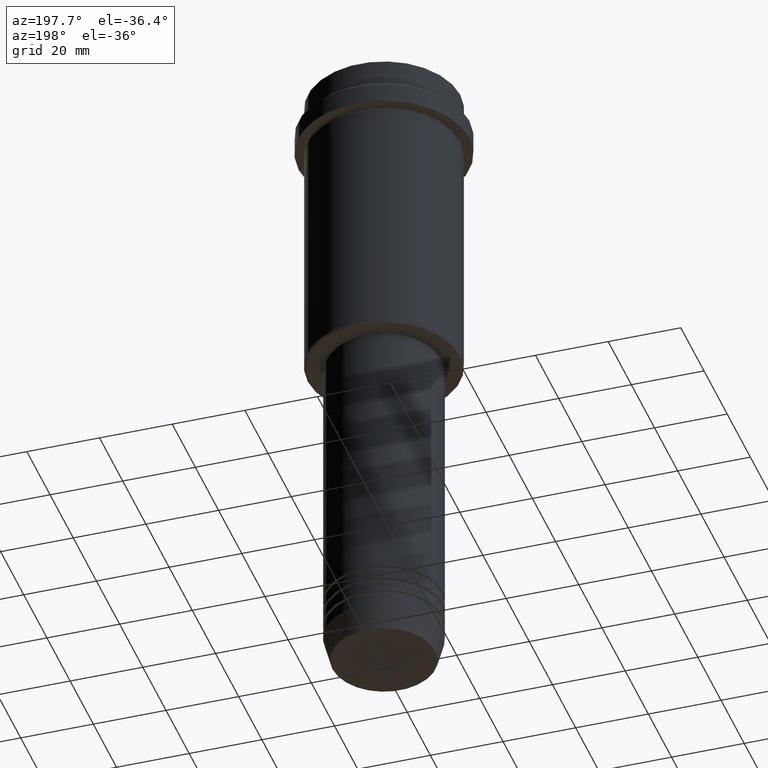
[diagram: clean part render]
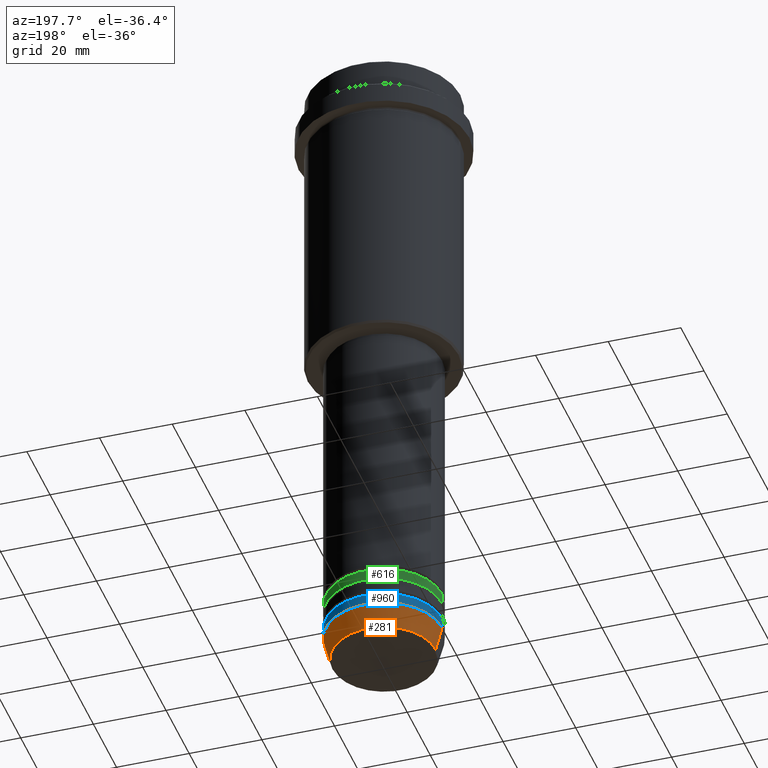
[diagram: same view with three faces highlighted in distinct colors, each labeled with its STEP entity id]
A machine part, auxiliary view with three faces highlighted in distinct colors.
Their STEP definitions:

[orange] entity #281 — the highlighted conical surface has half-angle 15 deg.
#55 = CARTESIAN_POINT ( 'NONE',  ( 0.000000000000000000, 0.000000000000000000, -173.0000000000000000 ) ) ;
#98 = VERTEX_POINT ( 'NONE', #383 ) ;
#147 = DIRECTION ( 'NONE',  ( -0.2588190451025213501, 3.169619151431772337E-17, 0.9659258262890680902 ) ) ;
#152 = CARTESIAN_POINT ( 'NONE',  ( -14.22365507213718772, 1.850665122131323337E-15, -179.6294095225512422 ) ) ;
#215 = VERTEX_POINT ( 'NONE', #262 ) ;
#220 = EDGE_CURVE ( 'NONE', #98, #215, #839, .T. ) ;
#226 = DIRECTION ( 'NONE',  ( -0.000000000000000000, -0.000000000000000000, 1.000000000000000000 ) ) ;
#262 = CARTESIAN_POINT ( 'NONE',  ( 16.00000000000000000, 0.000000000000000000, -173.0000000000000000 ) ) ;
#281 = ADVANCED_FACE ( 'NONE', ( #483 ), #1062, .T. ) ;
#335 = VECTOR ( 'NONE', #147, 1000.000000000000000 ) ;
#346 = LINE ( 'NONE', #1097, #335 ) ;
#370 = DIRECTION ( 'NONE',  ( -0.000000000000000000, -0.000000000000000000, 1.000000000000000000 ) ) ;
#383 = CARTESIAN_POINT ( 'NONE',  ( 14.22365507213718772, 0.000000000000000000, -179.6294095225512422 ) ) ;
#402 = EDGE_CURVE ( 'NONE', #215, #500, #1021, .T. ) ;
#479 = ORIENTED_EDGE ( 'NONE', *, *, #599, .T. ) ;
#483 = FACE_OUTER_BOUND ( 'NONE', #885, .T. ) ;
#500 = VERTEX_POINT ( 'NONE', #1052 ) ;
#505 = ORIENTED_EDGE ( 'NONE', *, *, #220, .F. ) ;
#599 = EDGE_CURVE ( 'NONE', #98, #882, #1064, .T. ) ;
#655 = AXIS2_PLACEMENT_3D ( 'NONE', #55, #796, #696 ) ;
#696 = DIRECTION ( 'NONE',  ( 1.000000000000000000, 0.000000000000000000, 0.000000000000000000 ) ) ;
#793 = AXIS2_PLACEMENT_3D ( 'NONE', #1363, #370, #815 ) ;
#796 = DIRECTION ( 'NONE',  ( -0.000000000000000000, -0.000000000000000000, 1.000000000000000000 ) ) ;
#802 = ORIENTED_EDGE ( 'NONE', *, *, #402, .F. ) ;
#815 = DIRECTION ( 'NONE',  ( 1.000000000000000000, 0.000000000000000000, 0.000000000000000000 ) ) ;
#839 = LINE ( 'NONE', #1193, #1203 ) ;
#882 = VERTEX_POINT ( 'NONE', #152 ) ;
#885 = EDGE_LOOP ( 'NONE', ( #479, #1039, #802, #505 ) ) ;
#1021 = CIRCLE ( 'NONE', #793, 16.00000000000000000 ) ;
#1039 = ORIENTED_EDGE ( 'NONE', *, *, #1181, .T. ) ;
#1052 = CARTESIAN_POINT ( 'NONE',  ( -16.00000000000000000, 1.959434878635765131E-15, -173.0000000000000000 ) ) ;
#1062 = CONICAL_SURFACE ( 'NONE', #655, 16.00000000000000000, 0.2617993877991500740 ) ;
#1064 = CIRCLE ( 'NONE', #1182, 14.22365507213718772 ) ;
#1097 = CARTESIAN_POINT ( 'NONE',  ( -16.00000000000000000, 1.959434878635765131E-15, -173.0000000000000000 ) ) ;
#1181 = EDGE_CURVE ( 'NONE', #882, #500, #346, .T. ) ;
#1182 = AXIS2_PLACEMENT_3D ( 'NONE', #1191, #226, #1301 ) ;
#1191 = CARTESIAN_POINT ( 'NONE',  ( 0.000000000000000000, 0.000000000000000000, -179.6294095225512422 ) ) ;
#1193 = CARTESIAN_POINT ( 'NONE',  ( 16.00000000000000000, 0.000000000000000000, -173.0000000000000000 ) ) ;
#1203 = VECTOR ( 'NONE', #1204, 1000.000000000000000 ) ;
#1204 = DIRECTION ( 'NONE',  ( 0.2588190451025213501, 0.000000000000000000, 0.9659258262890680902 ) ) ;
#1301 = DIRECTION ( 'NONE',  ( 1.000000000000000000, 0.000000000000000000, 0.000000000000000000 ) ) ;
#1363 = CARTESIAN_POINT ( 'NONE',  ( 0.000000000000000000, 0.000000000000000000, -173.0000000000000000 ) ) ;

[blue] entity #960 — the highlighted cylindrical surface (partial cylindrical patch) has radius 16 mm, axis along (-0, -0, 1).
#33 = CARTESIAN_POINT ( 'NONE',  ( -16.00000000000000000, 1.959434878635765131E-15, -169.9999999999999716 ) ) ;
#96 = DIRECTION ( 'NONE',  ( -0.000000000000000000, -0.000000000000000000, 1.000000000000000000 ) ) ;
#102 = ORIENTED_EDGE ( 'NONE', *, *, #112, .F. ) ;
#112 = EDGE_CURVE ( 'NONE', #1352, #1222, #829, .T. ) ;
#128 = EDGE_CURVE ( 'NONE', #215, #1352, #532, .T. ) ;
#215 = VERTEX_POINT ( 'NONE', #262 ) ;
#229 = VECTOR ( 'NONE', #1384, 1000.000000000000000 ) ;
#237 = LINE ( 'NONE', #898, #1016 ) ;
#262 = CARTESIAN_POINT ( 'NONE',  ( 16.00000000000000000, 0.000000000000000000, -173.0000000000000000 ) ) ;
#344 = ORIENTED_EDGE ( 'NONE', *, *, #402, .T. ) ;
#370 = DIRECTION ( 'NONE',  ( -0.000000000000000000, -0.000000000000000000, 1.000000000000000000 ) ) ;
#372 = CYLINDRICAL_SURFACE ( 'NONE', #440, 16.00000000000000000 ) ;
#396 = ORIENTED_EDGE ( 'NONE', *, *, #1252, .T. ) ;
#402 = EDGE_CURVE ( 'NONE', #215, #500, #1021, .T. ) ;
#410 = EDGE_LOOP ( 'NONE', ( #344, #396, #102, #1105 ) ) ;
#440 = AXIS2_PLACEMENT_3D ( 'NONE', #602, #1391, #1033 ) ;
#478 = CARTESIAN_POINT ( 'NONE',  ( 16.00000000000000000, 0.000000000000000000, 0.000000000000000000 ) ) ;
#500 = VERTEX_POINT ( 'NONE', #1052 ) ;
#509 = CARTESIAN_POINT ( 'NONE',  ( 16.00000000000000000, 0.000000000000000000, -169.9999999999999716 ) ) ;
#532 = LINE ( 'NONE', #478, #229 ) ;
#602 = CARTESIAN_POINT ( 'NONE',  ( 0.000000000000000000, 0.000000000000000000, 0.000000000000000000 ) ) ;
#665 = DIRECTION ( 'NONE',  ( -0.000000000000000000, -0.000000000000000000, 1.000000000000000000 ) ) ;
#793 = AXIS2_PLACEMENT_3D ( 'NONE', #1363, #370, #815 ) ;
#815 = DIRECTION ( 'NONE',  ( 1.000000000000000000, 0.000000000000000000, 0.000000000000000000 ) ) ;
#819 = DIRECTION ( 'NONE',  ( 1.000000000000000000, 0.000000000000000000, 0.000000000000000000 ) ) ;
#829 = CIRCLE ( 'NONE', #1082, 16.00000000000000000 ) ;
#898 = CARTESIAN_POINT ( 'NONE',  ( -16.00000000000000000, 1.959434878635765131E-15, 0.000000000000000000 ) ) ;
#960 = ADVANCED_FACE ( 'NONE', ( #1268 ), #372, .T. ) ;
#1016 = VECTOR ( 'NONE', #665, 1000.000000000000000 ) ;
#1021 = CIRCLE ( 'NONE', #793, 16.00000000000000000 ) ;
#1033 = DIRECTION ( 'NONE',  ( 1.000000000000000000, 0.000000000000000000, 0.000000000000000000 ) ) ;
#1052 = CARTESIAN_POINT ( 'NONE',  ( -16.00000000000000000, 1.959434878635765131E-15, -173.0000000000000000 ) ) ;
#1056 = CARTESIAN_POINT ( 'NONE',  ( 0.000000000000000000, 0.000000000000000000, -169.9999999999999716 ) ) ;
#1082 = AXIS2_PLACEMENT_3D ( 'NONE', #1056, #96, #819 ) ;
#1105 = ORIENTED_EDGE ( 'NONE', *, *, #128, .F. ) ;
#1222 = VERTEX_POINT ( 'NONE', #33 ) ;
#1252 = EDGE_CURVE ( 'NONE', #500, #1222, #237, .T. ) ;
#1268 = FACE_OUTER_BOUND ( 'NONE', #410, .T. ) ;
#1352 = VERTEX_POINT ( 'NONE', #509 ) ;
#1363 = CARTESIAN_POINT ( 'NONE',  ( 0.000000000000000000, 0.000000000000000000, -173.0000000000000000 ) ) ;
#1384 = DIRECTION ( 'NONE',  ( -0.000000000000000000, -0.000000000000000000, 1.000000000000000000 ) ) ;
#1391 = DIRECTION ( 'NONE',  ( -0.000000000000000000, -0.000000000000000000, 1.000000000000000000 ) ) ;

[green] entity #616 — the highlighted cylindrical surface (partial cylindrical patch) has radius 16 mm, axis along (-0, -0, 1).
#43 = VECTOR ( 'NONE', #464, 1000.000000000000000 ) ;
#60 = CARTESIAN_POINT ( 'NONE',  ( 0.000000000000000000, 0.000000000000000000, -161.9999999999998579 ) ) ;
#71 = DIRECTION ( 'NONE',  ( -0.000000000000000000, -0.000000000000000000, 1.000000000000000000 ) ) ;
#83 = DIRECTION ( 'NONE',  ( 1.000000000000000000, 0.000000000000000000, 0.000000000000000000 ) ) ;
#101 = CARTESIAN_POINT ( 'NONE',  ( 0.000000000000000000, 0.000000000000000000, 0.000000000000000000 ) ) ;
#104 = EDGE_CURVE ( 'NONE', #977, #1118, #399, .T. ) ;
#265 = ORIENTED_EDGE ( 'NONE', *, *, #104, .T. ) ;
#271 = CARTESIAN_POINT ( 'NONE',  ( -16.00000000000000000, 1.959434878635765131E-15, -161.9999999999998579 ) ) ;
#276 = CARTESIAN_POINT ( 'NONE',  ( -16.00000000000000000, 1.959434878635765131E-15, 0.000000000000000000 ) ) ;
#288 = AXIS2_PLACEMENT_3D ( 'NONE', #1051, #737, #942 ) ;
#300 = EDGE_CURVE ( 'NONE', #977, #1356, #1251, .T. ) ;
#307 = EDGE_LOOP ( 'NONE', ( #265, #1188, #577, #1073 ) ) ;
#337 = CIRCLE ( 'NONE', #359, 16.00000000000000000 ) ;
#354 = CARTESIAN_POINT ( 'NONE',  ( 16.00000000000000000, 0.000000000000000000, 0.000000000000000000 ) ) ;
#358 = VECTOR ( 'NONE', #1136, 1000.000000000000000 ) ;
#359 = AXIS2_PLACEMENT_3D ( 'NONE', #60, #71, #83 ) ;
#399 = CIRCLE ( 'NONE', #288, 16.00000000000000000 ) ;
#415 = CYLINDRICAL_SURFACE ( 'NONE', #549, 16.00000000000000000 ) ;
#431 = FACE_OUTER_BOUND ( 'NONE', #307, .T. ) ;
#464 = DIRECTION ( 'NONE',  ( -0.000000000000000000, -0.000000000000000000, 1.000000000000000000 ) ) ;
#487 = CARTESIAN_POINT ( 'NONE',  ( 16.00000000000000000, 0.000000000000000000, -164.9999999999998579 ) ) ;
#538 = EDGE_CURVE ( 'NONE', #1356, #1322, #337, .T. ) ;
#548 = DIRECTION ( 'NONE',  ( 1.000000000000000000, 0.000000000000000000, 0.000000000000000000 ) ) ;
#549 = AXIS2_PLACEMENT_3D ( 'NONE', #101, #738, #548 ) ;
#577 = ORIENTED_EDGE ( 'NONE', *, *, #538, .F. ) ;
#605 = LINE ( 'NONE', #276, #358 ) ;
#616 = ADVANCED_FACE ( 'NONE', ( #431 ), #415, .T. ) ;
#737 = DIRECTION ( 'NONE',  ( -0.000000000000000000, -0.000000000000000000, 1.000000000000000000 ) ) ;
#738 = DIRECTION ( 'NONE',  ( -0.000000000000000000, -0.000000000000000000, 1.000000000000000000 ) ) ;
#818 = CARTESIAN_POINT ( 'NONE',  ( 16.00000000000000000, 0.000000000000000000, -161.9999999999998579 ) ) ;
#942 = DIRECTION ( 'NONE',  ( 1.000000000000000000, 0.000000000000000000, 0.000000000000000000 ) ) ;
#977 = VERTEX_POINT ( 'NONE', #487 ) ;
#1051 = CARTESIAN_POINT ( 'NONE',  ( 0.000000000000000000, 0.000000000000000000, -164.9999999999998579 ) ) ;
#1067 = CARTESIAN_POINT ( 'NONE',  ( -16.00000000000000000, 1.959434878635765131E-15, -164.9999999999998579 ) ) ;
#1073 = ORIENTED_EDGE ( 'NONE', *, *, #300, .F. ) ;
#1118 = VERTEX_POINT ( 'NONE', #1067 ) ;
#1136 = DIRECTION ( 'NONE',  ( -0.000000000000000000, -0.000000000000000000, 1.000000000000000000 ) ) ;
#1188 = ORIENTED_EDGE ( 'NONE', *, *, #1340, .T. ) ;
#1251 = LINE ( 'NONE', #354, #43 ) ;
#1322 = VERTEX_POINT ( 'NONE', #271 ) ;
#1340 = EDGE_CURVE ( 'NONE', #1118, #1322, #605, .T. ) ;
#1356 = VERTEX_POINT ( 'NONE', #818 ) ;